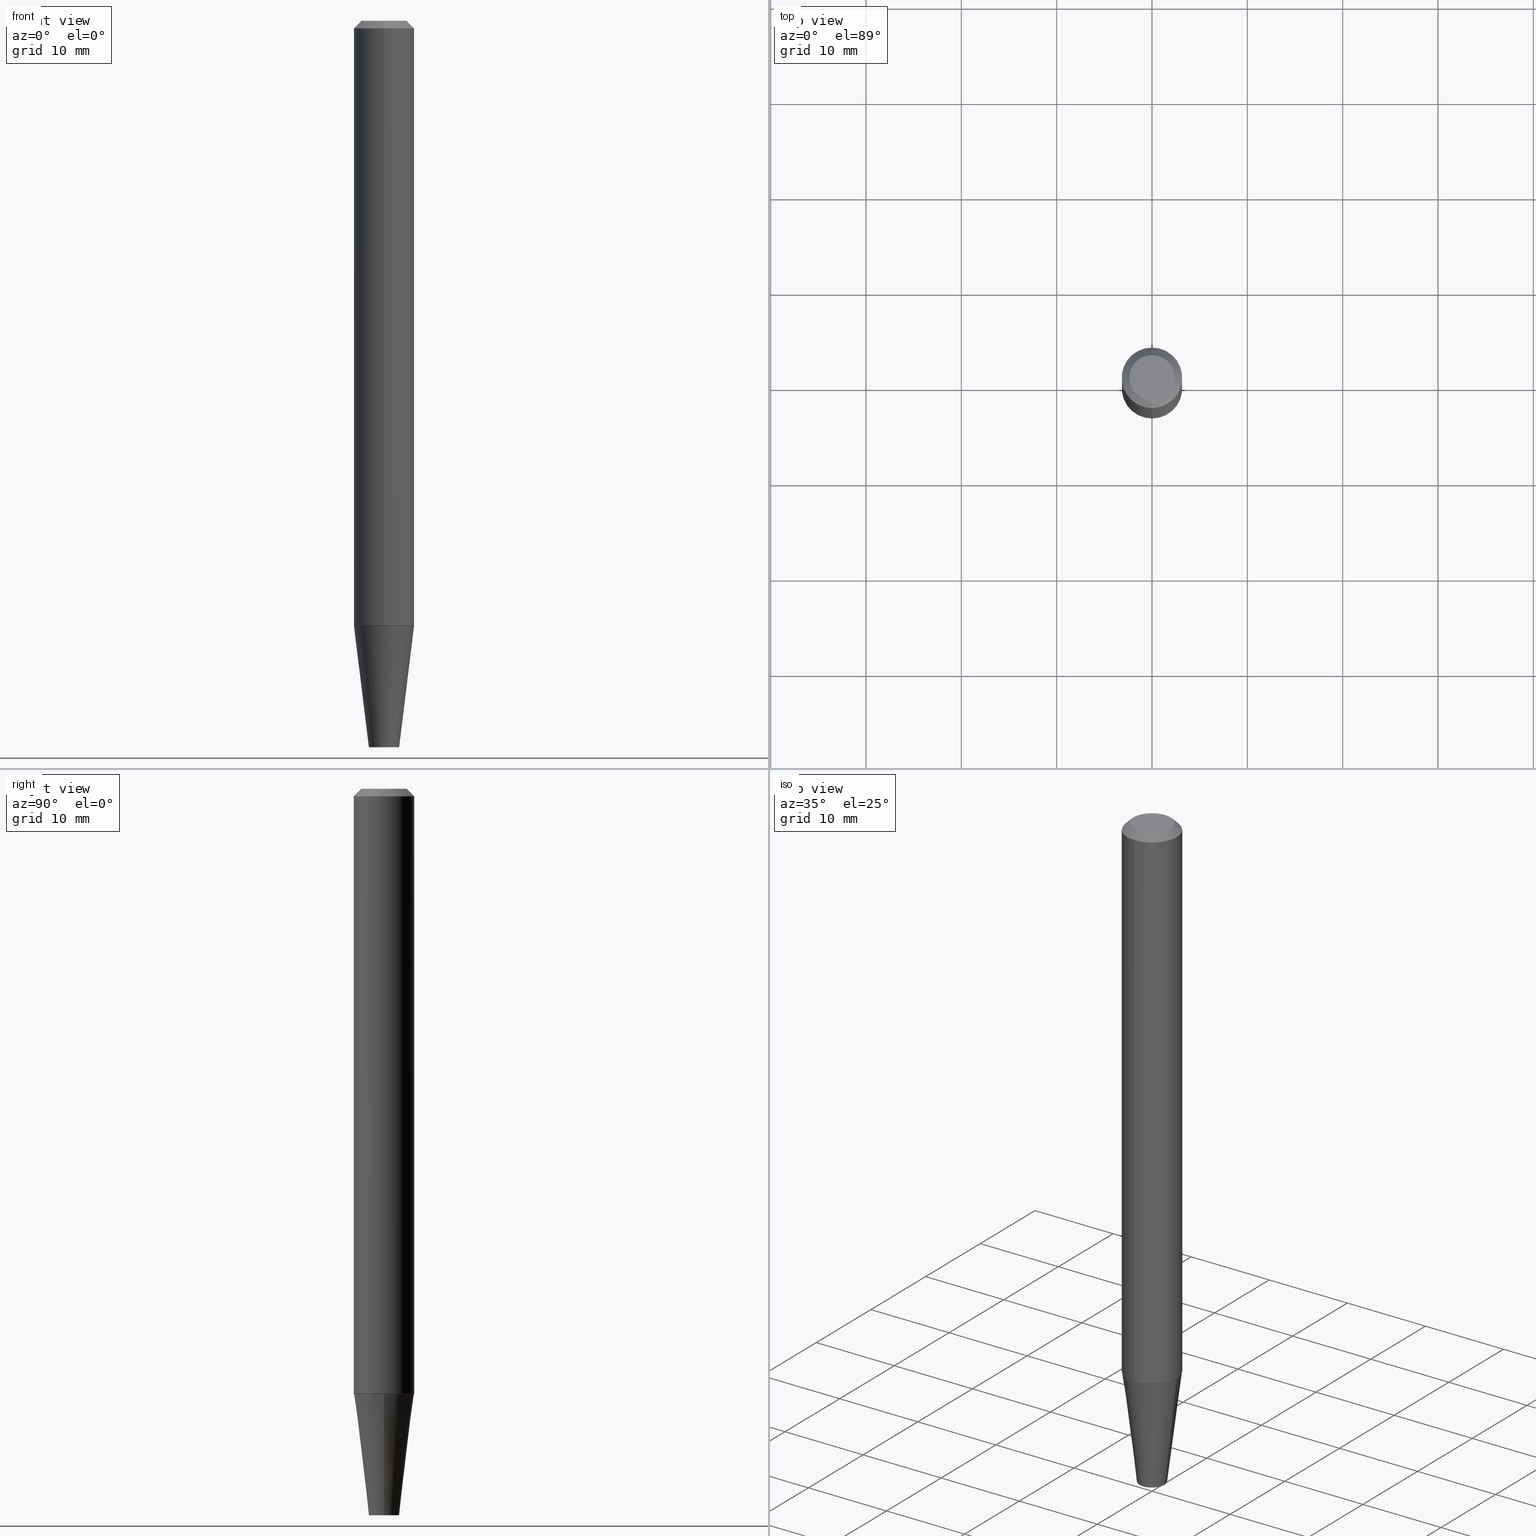
[diagram: canonical four-view strip — front | top / right | iso, engineering-drawing reading convention]
A machine part, canonical four-view strip (front | top / right | iso — engineering-drawing reading convention). The complete STEP part file that produces these views, byte-faithful:
ISO-10303-21;
HEADER;
FILE_DESCRIPTION (( 'STEP AP203' ),
    '1' );
FILE_NAME ('32312.STEP',
    '2024-03-04T15:07:06',
    ( '' ),
    ( '' ),
    'SwSTEP 2.0',
    'SolidWorks 2023',
    '' );
FILE_SCHEMA (( 'CONFIG_CONTROL_DESIGN' ));
ENDSEC;

DATA;
#1 = EDGE_CURVE ( 'NONE', #155, #297, #37, .T. ) ;
#2 = CARTESIAN_POINT ( 'NONE',  ( 6.245270137589869885E-29, -8.540247346122001173E-15, -2.500000000000000000 ) ) ;
#3 = FACE_OUTER_BOUND ( 'NONE', #154, .T. ) ;
#4 = ORIENTED_EDGE ( 'NONE', *, *, #391, .F. ) ;
#5 = LOCAL_TIME ( 10, 7, 6.000000000000000000, #26 ) ;
#6 = VECTOR ( 'NONE', #274, 39.37007874015748143 ) ;
#7 = ORIENTED_EDGE ( 'NONE', *, *, #116, .F. ) ;
#8 = ORIENTED_EDGE ( 'NONE', *, *, #1, .T. ) ;
#9 = DIRECTION ( 'NONE',  ( -2.634027352174644094E-29, 3.221454768900221643E-15, 1.000000000000000000 ) ) ;
#10 = EDGE_CURVE ( 'NONE', #288, #130, #156, .T. ) ;
#11 = CYLINDRICAL_SURFACE ( 'NONE', #125, 0.1250000000000001388 ) ;
#12 = DIRECTION ( 'NONE',  ( -1.000000000000000000, 6.982962677686265922E-15, -4.876176775795935793E-29 ) ) ;
#13 = CC_DESIGN_APPROVAL ( #386, ( #56 ) ) ;
#14 = VERTEX_POINT ( 'NONE', #317 ) ;
#15 = CARTESIAN_POINT ( 'NONE',  ( 4.364351673554662661E-16, 0.06249999999998970962, -3.000000000000000444 ) ) ;
#16 = ADVANCED_FACE ( 'NONE', ( #126 ), #278, .T. ) ;
#17 = APPROVAL_ROLE ( '' ) ;
#18 = ORIENTED_EDGE ( 'NONE', *, *, #213, .T. ) ;
#19 = CARTESIAN_POINT ( 'NONE',  ( 6.239012973379943881E-29, -8.532594740894794677E-15, -2.497624487762148515 ) ) ;
#20 = ORIENTED_EDGE ( 'NONE', *, *, #302, .F. ) ;
#21 = DIRECTION ( 'NONE',  ( -2.634027352174644094E-29, 3.221454768900221643E-15, 1.000000000000000000 ) ) ;
#22 = FACE_OUTER_BOUND ( 'NONE', #221, .T. ) ;
#23 = EDGE_LOOP ( 'NONE', ( #283, #4 ) ) ;
#24 = AXIS2_PLACEMENT_3D ( 'NONE', #185, #357, #324 ) ;
#25 = CARTESIAN_POINT ( 'NONE',  ( -3.397982428467408395E-30, -4.866104238714468673E-16, 1.310162147875615221E-17 ) ) ;
#26 = COORDINATED_UNIVERSAL_TIME_OFFSET ( 5, 0, .BEHIND. ) ;
#27 = CYLINDRICAL_SURFACE ( 'NONE', #100, 0.1250000000000001388 ) ;
#28 = ORIENTED_EDGE ( 'NONE', *, *, #350, .F. ) ;
#29 = CC_DESIGN_PERSON_AND_ORGANIZATION_ASSIGNMENT ( #90, #174, ( #305 ) ) ;
#30 = APPLICATION_PROTOCOL_DEFINITION ( 'international standard', 'config_control_design', 1994, #151 ) ;
#31 = PLANE ( 'NONE',  #95 ) ;
#32 = LINE ( 'NONE', #121, #196 ) ;
#33 = FACE_OUTER_BOUND ( 'NONE', #39, .T. ) ;
#34 = CIRCLE ( 'NONE', #204, 0.09375000000000049960 ) ;
#35 = CARTESIAN_POINT ( 'NONE',  ( 0.000000000000000000, 0.000000000000000000, 0.000000000000000000 ) ) ;
#36 = VECTOR ( 'NONE', #409, 39.37007874015748143 ) ;
#37 = LINE ( 'NONE', #353, #330 ) ;
#38 = DIRECTION ( 'NONE',  ( -2.634027352174644094E-29, 3.221454768900221643E-15, 1.000000000000000000 ) ) ;
#39 = EDGE_LOOP ( 'NONE', ( #127, #249, #67, #253 ) ) ;
#40 = ADVANCED_FACE ( 'NONE', ( #3 ), #388, .F. ) ;
#41 = CONICAL_SURFACE ( 'NONE', #102, 0.1233922804514486354, 0.7853981633975030130 ) ;
#42 = CIRCLE ( 'NONE', #321, 0.1233922804514486216 ) ;
#43 = DIRECTION ( 'NONE',  ( 2.438088387897960049E-29, -3.491481338843145188E-15, -1.000000000000000000 ) ) ;
#44 = ADVANCED_FACE ( 'NONE', ( #255 ), #153, .T. ) ;
#45 = ORIENTED_EDGE ( 'NONE', *, *, #349, .F. ) ;
#46 = FACE_OUTER_BOUND ( 'NONE', #372, .T. ) ;
#47 = CARTESIAN_POINT ( 'NONE',  ( 8.767548852365608530E-16, 0.1233922804514401006, -2.500000000000000444 ) ) ;
#48 = DIRECTION ( 'NONE',  ( 2.634027352174644094E-29, -3.221454768900221643E-15, -1.000000000000000000 ) ) ;
#49 = EDGE_LOOP ( 'NONE', ( #165, #268 ) ) ;
#50 = CARTESIAN_POINT ( 'NONE',  ( -8.575622497214472631E-16, -0.1250000000000010825, -0.03124999999999965306 ) ) ;
#51 = CARTESIAN_POINT ( 'NONE',  ( -7.503669685062676741E-16, -0.09375000000000098532, 3.151130060631535691E-16 ) ) ;
#52 = ORIENTED_EDGE ( 'NONE', *, *, #279, .T. ) ;
#53 = DIRECTION ( 'NONE',  ( 1.000000000000000000, -6.982962677686273810E-15, 0.000000000000000000 ) ) ;
#54 = DIRECTION ( 'NONE',  ( 1.000000000000000000, -6.982962677686273810E-15, 0.000000000000000000 ) ) ;
#55 = VERTEX_POINT ( 'NONE', #270 ) ;
#56 = PRODUCT_DEFINITION ( 'UNKNOWN', '', #305, #414 ) ;
#57 = AXIS2_PLACEMENT_3D ( 'NONE', #19, #171, #331 ) ;
#58 = PERSON_AND_ORGANIZATION ( #277, #365 ) ;
#59 = PERSON_AND_ORGANIZATION_ROLE ( 'creator' ) ;
#60 = CARTESIAN_POINT ( 'NONE',  ( 8.728703347107841277E-16, 0.1249999999999999167, -0.03125000000000045797 ) ) ;
#61 = DIRECTION ( 'NONE',  ( -6.982962677686265922E-15, -1.000000000000000000, 4.427907456883688085E-15 ) ) ;
#62 = APPROVAL_STATUS ( 'not_yet_approved' ) ;
#63 = LOCAL_TIME ( 10, 7, 6.000000000000000000, #328 ) ;
#64 = AXIS2_PLACEMENT_3D ( 'NONE', #168, #360, #142 ) ;
#65 = PERSON_AND_ORGANIZATION_ROLE ( 'classification_officer' ) ;
#66 = APPROVAL_PERSON_ORGANIZATION ( #310, #203, #131 ) ;
#67 = ORIENTED_EDGE ( 'NONE', *, *, #323, .F. ) ;
#68 = MANIFOLD_SOLID_BREP ( 'Body-Move/Copy2[2]', #183 ) ;
#69 = EDGE_LOOP ( 'NONE', ( #406, #170, #389, #407 ) ) ;
#70 = EDGE_LOOP ( 'NONE', ( #200, #236, #300, #287 ) ) ;
#71 = ORIENTED_EDGE ( 'NONE', *, *, #220, .F. ) ;
#72 = APPROVAL_PERSON_ORGANIZATION ( #271, #386, #89 ) ;
#73 = AXIS2_PLACEMENT_3D ( 'NONE', #108, #192, #104 ) ;
#74 = VERTEX_POINT ( 'NONE', #326 ) ;
#75 = CARTESIAN_POINT ( 'NONE',  ( 6.113672015462842613E-29, -8.728703347107864943E-15, -2.500000000000000000 ) ) ;
#76 = LINE ( 'NONE', #191, #179 ) ;
#77 = DATE_AND_TIME ( #405, #294 ) ;
#78 = CARTESIAN_POINT ( 'NONE',  ( 7.336406418555409790E-29, -1.047444401652943635E-14, -3.000000000000000444 ) ) ;
#79 = SHAPE_DEFINITION_REPRESENTATION ( #177, #299 ) ;
#80 = DIRECTION ( 'NONE',  ( 2.438088387897960049E-29, -3.491481338843145188E-15, -1.000000000000000000 ) ) ;
#81 = ORIENTED_EDGE ( 'NONE', *, *, #275, .T. ) ;
#82 = CARTESIAN_POINT ( 'NONE',  ( 6.546527510330876027E-16, 0.09375000000000002776, -2.858986465786003734E-16 ) ) ;
#83 = DIRECTION ( 'NONE',  ( -2.634027352174644094E-29, 3.221454768900221643E-15, 1.000000000000000000 ) ) ;
#84 = ORIENTED_EDGE ( 'NONE', *, *, #275, .F. ) ;
#85 = DIRECTION ( 'NONE',  ( -2.445468806185136597E-29, 3.491481338843145583E-15, 1.000000000000000000 ) ) ;
#86 = CALENDAR_DATE ( 2024, 4, 3 ) ;
#87 = CIRCLE ( 'NONE', #182, 0.06250000000000018041 ) ;
#88 = AXIS2_PLACEMENT_3D ( 'NONE', #75, #136, #402 ) ;
#89 = APPROVAL_ROLE ( '' ) ;
#90 = PERSON_AND_ORGANIZATION ( #277, #365 ) ;
#91 = ADVANCED_FACE ( 'NONE', ( #301 ), #113, .T. ) ;
#92 = CARTESIAN_POINT ( 'NONE',  ( 8.728703347107841277E-16, 0.1249999999999999167, -0.03125000000000045797 ) ) ;
#93 = DIRECTION ( 'NONE',  ( 1.000000000000000000, 0.000000000000000000, 0.000000000000000000 ) ) ;
#94 = DIRECTION ( 'NONE',  ( 0.000000000000000000, 0.000000000000000000, 1.000000000000000000 ) ) ;
#95 = AXIS2_PLACEMENT_3D ( 'NONE', #393, #43, #12 ) ;
#96 = LINE ( 'NONE', #242, #387 ) ;
#97 = ADVANCED_FACE ( 'NONE', ( #234 ), #41, .T. ) ;
#98 = ORIENTED_EDGE ( 'NONE', *, *, #123, .F. ) ;
#99 = ORIENTED_EDGE ( 'NONE', *, *, #349, .T. ) ;
#100 = AXIS2_PLACEMENT_3D ( 'NONE', #335, #83, #114 ) ;
#101 = LINE ( 'NONE', #47, #212 ) ;
#102 = AXIS2_PLACEMENT_3D ( 'NONE', #199, #261, #334 ) ;
#103 = ORIENTED_EDGE ( 'NONE', *, *, #359, .F. ) ;
#104 = DIRECTION ( 'NONE',  ( 6.982962677686265133E-15, 1.000000000000000000, -3.209921392555496413E-15 ) ) ;
#105 = CARTESIAN_POINT ( 'NONE',  ( 6.113672015462842613E-29, -8.728703347107864943E-15, -2.500000000000000000 ) ) ;
#106 = FACE_OUTER_BOUND ( 'NONE', #336, .T. ) ;
#107 = VERTEX_POINT ( 'NONE', #162 ) ;
#108 = CARTESIAN_POINT ( 'NONE',  ( -2.574848880912829663E-30, -5.872808853995789416E-16, -0.03125000000000005551 ) ) ;
#109 =( LENGTH_UNIT ( ) NAMED_UNIT ( * ) SI_UNIT ( $, .METRE. ) );
#110 = CIRCLE ( 'NONE', #404, 0.1249999999999997918 ) ;
#111 = ADVANCED_FACE ( 'NONE', ( #144 ), #163, .T. ) ;
#112 = VERTEX_POINT ( 'NONE', #115 ) ;
#113 = PLANE ( 'NONE',  #211 ) ;
#114 = DIRECTION ( 'NONE',  ( -6.982962677686266711E-15, -1.000000000000000000, 3.221454768900222038E-15 ) ) ;
#115 = CARTESIAN_POINT ( 'NONE',  ( 7.637615428719357173E-16, 0.09375000000000002776, -2.889097631056411938E-16 ) ) ;
#116 = EDGE_CURVE ( 'NONE', #55, #322, #139, .T. ) ;
#117 = APPROVAL_DATE_TIME ( #206, #386 ) ;
#118 = FACE_OUTER_BOUND ( 'NONE', #337, .T. ) ;
#119 = CC_DESIGN_APPROVAL ( #203, ( #339 ) ) ;
#120 = CLOSED_SHELL ( 'NONE', ( #215, #91, #189, #319 ) ) ;
#121 = CARTESIAN_POINT ( 'NONE',  ( -8.616436891069999506E-16, -0.1233922804514571703, -2.499999999999999556 ) ) ;
#122 = CC_DESIGN_PERSON_AND_ORGANIZATION_ASSIGNMENT ( #132, #65, ( #339 ) ) ;
#123 = EDGE_CURVE ( 'NONE', #390, #112, #233, .T. ) ;
#124 = CC_DESIGN_PERSON_AND_ORGANIZATION_ASSIGNMENT ( #58, #238, ( #209 ) ) ;
#125 = AXIS2_PLACEMENT_3D ( 'NONE', #227, #197, #362 ) ;
#126 = FACE_OUTER_BOUND ( 'NONE', #318, .T. ) ;
#127 = ORIENTED_EDGE ( 'NONE', *, *, #128, .T. ) ;
#128 = EDGE_CURVE ( 'NONE', #155, #74, #378, .T. ) ;
#129 = APPROVAL_DATE_TIME ( #281, #149 ) ;
#130 = VERTEX_POINT ( 'NONE', #50 ) ;
#131 = APPROVAL_ROLE ( '' ) ;
#132 = PERSON_AND_ORGANIZATION ( #277, #365 ) ;
#133 = DIRECTION ( 'NONE',  ( -6.982962677686265922E-15, -1.000000000000000000, 3.221454768900221643E-15 ) ) ;
#134 = ORIENTED_EDGE ( 'NONE', *, *, #10, .F. ) ;
#135 = EDGE_CURVE ( 'NONE', #74, #155, #247, .T. ) ;
#136 = DIRECTION ( 'NONE',  ( -2.445468806185136597E-29, 3.491481338843145583E-15, 1.000000000000000000 ) ) ;
#137 = LOCAL_TIME ( 10, 7, 6.000000000000000000, #410 ) ;
#138 = CARTESIAN_POINT ( 'NONE',  ( 8.834117423811068024E-16, 0.1243291498063037182, -2.499063130645136965 ) ) ;
#139 = CIRCLE ( 'NONE', #88, 0.1238922804514488302 ) ;
#140 = DIRECTION ( 'NONE',  ( -6.982962677686266711E-15, -1.000000000000000000, 4.394541421573472565E-15 ) ) ;
#141 = ORIENTED_EDGE ( 'NONE', *, *, #323, .T. ) ;
#142 = DIRECTION ( 'NONE',  ( -6.982962677686266711E-15, -1.000000000000000000, 4.394541421573472565E-15 ) ) ;
#143 = EDGE_CURVE ( 'NONE', #297, #130, #237, .T. ) ;
#144 = FACE_OUTER_BOUND ( 'NONE', #69, .T. ) ;
#145 = CONICAL_SURFACE ( 'NONE', #347, 0.1243291498063122530, 0.4363323129985816062 ) ;
#146 = FACE_OUTER_BOUND ( 'NONE', #263, .T. ) ;
#147 = DIRECTION ( 'NONE',  ( -2.634027352174644094E-29, 3.221454768900221643E-15, 1.000000000000000000 ) ) ;
#148 = LINE ( 'NONE', #207, #252 ) ;
#149 = APPROVAL ( #296, 'UNSPECIFIED' ) ;
#150 = CARTESIAN_POINT ( 'NONE',  ( 6.242802398083744501E-29, -8.537229263870939890E-15, -2.499063130645136521 ) ) ;
#151 = APPLICATION_CONTEXT ( 'configuration controlled 3d designs of mechanical parts and assemblies' ) ;
#152 = AXIS2_PLACEMENT_3D ( 'NONE', #329, #195, #53 ) ;
#153 = CONICAL_SURFACE ( 'NONE', #346, 0.1250000000000004996, 0.7853981633974471688 ) ;
#154 = EDGE_LOOP ( 'NONE', ( #158, #45 ) ) ;
#155 = VERTEX_POINT ( 'NONE', #369 ) ;
#156 = CIRCLE ( 'NONE', #24, 0.1250000000000004996 ) ;
#157 = AXIS2_PLACEMENT_3D ( 'NONE', #175, #309, #311 ) ;
#158 = ORIENTED_EDGE ( 'NONE', *, *, #316, .F. ) ;
#159 = DIRECTION ( 'NONE',  ( 1.000000000000000000, -6.982962677686273810E-15, 0.000000000000000000 ) ) ;
#160 = CARTESIAN_POINT ( 'NONE',  ( -0.06250000000000018041, -8.939375277435968342E-15, -3.000000000000000444 ) ) ;
#161 = ORIENTED_EDGE ( 'NONE', *, *, #355, .F. ) ;
#162 = CARTESIAN_POINT ( 'NONE',  ( -8.616436891069998520E-16, -0.1233922804514571564, -2.499999999999999556 ) ) ;
#163 = CONICAL_SURFACE ( 'NONE', #73, 0.1250000000000004996, 0.7853981633974471688 ) ;
#164 = DATE_TIME_ROLE ( 'creation_date' ) ;
#165 = ORIENTED_EDGE ( 'NONE', *, *, #116, .T. ) ;
#166 = ORIENTED_EDGE ( 'NONE', *, *, #415, .T. ) ;
#167 = DIRECTION ( 'NONE',  ( -1.000000000000000000, 6.982962677686265922E-15, -4.876176775795935793E-29 ) ) ;
#168 = CARTESIAN_POINT ( 'NONE',  ( 6.242802398083744501E-29, -8.537229263870939890E-15, -2.499063130645136521 ) ) ;
#169 = CARTESIAN_POINT ( 'NONE',  ( -2.574848880912829663E-30, -5.872808853995789416E-16, -0.03125000000000005551 ) ) ;
#170 = ORIENTED_EDGE ( 'NONE', *, *, #239, .F. ) ;
#171 = DIRECTION ( 'NONE',  ( -2.634027352174644094E-29, 3.221454768900221643E-15, 1.000000000000000000 ) ) ;
#172 = AXIS2_PLACEMENT_3D ( 'NONE', #78, #85, #159 ) ;
#173 = ADVANCED_FACE ( 'NONE', ( #46 ), #265, .F. ) ;
#174 = PERSON_AND_ORGANIZATION_ROLE ( 'design_supplier' ) ;
#175 = CARTESIAN_POINT ( 'NONE',  ( 6.242802398083744501E-29, -8.537229263870939890E-15, -2.499063130645136521 ) ) ;
#176 = DATE_TIME_ROLE ( 'classification_date' ) ;
#177 = PRODUCT_DEFINITION_SHAPE ( 'NONE', 'NONE',  #56 ) ;
#178 = FACE_OUTER_BOUND ( 'NONE', #49, .T. ) ;
#179 = VECTOR ( 'NONE', #325, 39.37007874015748854 ) ;
#180 = AXIS2_PLACEMENT_3D ( 'NONE', #264, #259, #398 ) ;
#181 =( NAMED_UNIT ( * ) SI_UNIT ( $, .STERADIAN. ) SOLID_ANGLE_UNIT ( ) );
#182 = AXIS2_PLACEMENT_3D ( 'NONE', #332, #370, #54 ) ;
#183 = CLOSED_SHELL ( 'NONE', ( #312, #364, #44, #97, #16, #40, #173, #111, #194, #308 ) ) ;
#184 = CC_DESIGN_DATE_AND_TIME_ASSIGNMENT ( #375, #176, ( #339 ) ) ;
#185 = CARTESIAN_POINT ( 'NONE',  ( -2.574848880912829663E-30, -5.872808853995789416E-16, -0.03125000000000005551 ) ) ;
#186 = CARTESIAN_POINT ( 'NONE',  ( 6.030273395257036934E-29, -8.848134917997253710E-15, -2.500000000000000000 ) ) ;
#187 = ORIENTED_EDGE ( 'NONE', *, *, #143, .F. ) ;
#188 = ORIENTED_EDGE ( 'NONE', *, *, #391, .T. ) ;
#189 = ADVANCED_FACE ( 'NONE', ( #106 ), #368, .T. ) ;
#190 = EDGE_LOOP ( 'NONE', ( #98, #254, #166, #20 ) ) ;
#191 = CARTESIAN_POINT ( 'NONE',  ( 0.06250000000000018041, -1.091087918388483118E-14, -3.000000000000000444 ) ) ;
#192 = DIRECTION ( 'NONE',  ( 2.634027352174644094E-29, -3.221454768900221643E-15, -1.000000000000000000 ) ) ;
#193 = PERSON_AND_ORGANIZATION ( #277, #365 ) ;
#194 = ADVANCED_FACE ( 'NONE', ( #366 ), #11, .T. ) ;
#195 = DIRECTION ( 'NONE',  ( -2.445468806185136597E-29, 3.491481338843145583E-15, 1.000000000000000000 ) ) ;
#196 = VECTOR ( 'NONE', #240, 39.37007874015748143 ) ;
#197 = DIRECTION ( 'NONE',  ( -2.634027352174644094E-29, 3.221454768900221643E-15, 1.000000000000000000 ) ) ;
#198 = ORIENTED_EDGE ( 'NONE', *, *, #350, .T. ) ;
#199 = CARTESIAN_POINT ( 'NONE',  ( 6.245270137589869885E-29, -8.540247346122001173E-15, -2.500000000000000000 ) ) ;
#200 = ORIENTED_EDGE ( 'NONE', *, *, #316, .T. ) ;
#201 = CARTESIAN_POINT ( 'NONE',  ( 6.242802398083744501E-29, -8.537229263870939890E-15, -2.499063130645136521 ) ) ;
#202 = DATE_AND_TIME ( #86, #5 ) ;
#203 = APPROVAL ( #62, 'UNSPECIFIED' ) ;
#204 = AXIS2_PLACEMENT_3D ( 'NONE', #25, #408, #382 ) ;
#205 = COORDINATED_UNIVERSAL_TIME_OFFSET ( 5, 0, .BEHIND. ) ;
#206 = DATE_AND_TIME ( #374, #137 ) ;
#207 = CARTESIAN_POINT ( 'NONE',  ( -0.06250000000000018041, -1.003035480667937216E-14, -3.000000000000000444 ) ) ;
#208 = CARTESIAN_POINT ( 'NONE',  ( 6.245270137589869885E-29, -8.540247346122001173E-15, -2.500000000000000000 ) ) ;
#209 = PRODUCT ( '32312', '32312', '', ( #381 ) ) ;
#210 =( NAMED_UNIT ( * ) PLANE_ANGLE_UNIT ( ) SI_UNIT ( $, .RADIAN. ) );
#211 = AXIS2_PLACEMENT_3D ( 'NONE', #15, #80, #167 ) ;
#212 = VECTOR ( 'NONE', #361, 39.37007874015748143 ) ;
#213 = EDGE_CURVE ( 'NONE', #223, #354, #356, .T. ) ;
#214 = CARTESIAN_POINT ( 'NONE',  ( 8.881784197001227671E-16, 0.1249999999999996808, -3.835579915796902468E-16 ) ) ;
#215 = ADVANCED_FACE ( 'NONE', ( #146 ), #394, .T. ) ;
#216 = CIRCLE ( 'NONE', #57, 0.1249999999999997918 ) ;
#217 = ORIENTED_EDGE ( 'NONE', *, *, #123, .T. ) ;
#218 = PERSON_AND_ORGANIZATION_ROLE ( 'creator' ) ;
#219 = ORIENTED_EDGE ( 'NONE', *, *, #143, .T. ) ;
#220 = EDGE_CURVE ( 'NONE', #291, #297, #216, .T. ) ;
#221 = EDGE_LOOP ( 'NONE', ( #141, #81, #303, #187 ) ) ;
#222 = SECURITY_CLASSIFICATION_LEVEL ( 'unclassified' ) ;
#223 = VERTEX_POINT ( 'NONE', #304 ) ;
#224 = CARTESIAN_POINT ( 'NONE',  ( 6.245270137589869885E-29, -8.540247346122001173E-15, -2.500000000000000000 ) ) ;
#225 = DIRECTION ( 'NONE',  ( -2.634027352174644094E-29, 3.221454768900221643E-15, 1.000000000000000000 ) ) ;
#226 = DIRECTION ( 'NONE',  ( -2.634027352174644094E-29, 3.221454768900221643E-15, 1.000000000000000000 ) ) ;
#227 = CARTESIAN_POINT ( 'NONE',  ( -3.397982428467408395E-30, -4.866104238714468673E-16, 1.912385453283800096E-17 ) ) ;
#228 = APPLICATION_CONTEXT ( 'configuration controlled 3d designs of mechanical parts and assemblies' ) ;
#229 = ORIENTED_EDGE ( 'NONE', *, *, #284, .F. ) ;
#230 = CARTESIAN_POINT ( 'NONE',  ( -8.728703347107876776E-16, -0.1250000000000006384, 4.218057006453661994E-16 ) ) ;
#231 = AXIS2_PLACEMENT_3D ( 'NONE', #35, #94, #93 ) ;
#232 = AXIS2_PLACEMENT_3D ( 'NONE', #186, #38, #133 ) ;
#233 = CIRCLE ( 'NONE', #413, 0.09375000000000049960 ) ;
#234 = FACE_OUTER_BOUND ( 'NONE', #70, .T. ) ;
#235 = DIRECTION ( 'NONE',  ( 1.000000000000000000, -6.982962677686261977E-15, 0.000000000000000000 ) ) ;
#236 = ORIENTED_EDGE ( 'NONE', *, *, #333, .T. ) ;
#237 = LINE ( 'NONE', #230, #341 ) ;
#238 = PERSON_AND_ORGANIZATION_ROLE ( 'design_owner' ) ;
#239 = EDGE_CURVE ( 'NONE', #112, #390, #34, .T. ) ;
#240 = DIRECTION ( 'NONE',  ( -4.937700262164819410E-15, -0.7071067811865838770, 0.7071067811865111574 ) ) ;
#241 = CC_DESIGN_APPROVAL ( #149, ( #305 ) ) ;
#242 = CARTESIAN_POINT ( 'NONE',  ( -8.575622497214472631E-16, -0.1250000000000010825, -0.03124999999999965306 ) ) ;
#243 = LINE ( 'NONE', #92, #6 ) ;
#244 = EDGE_CURVE ( 'NONE', #390, #130, #96, .T. ) ;
#245 = CC_DESIGN_DATE_AND_TIME_ASSIGNMENT ( #202, #164, ( #56 ) ) ;
#246 = VECTOR ( 'NONE', #396, 39.37007874015748143 ) ;
#247 = CIRCLE ( 'NONE', #64, 0.1243291498063122391 ) ;
#248 = CC_DESIGN_PERSON_AND_ORGANIZATION_ASSIGNMENT ( #280, #218, ( #305 ) ) ;
#249 = ORIENTED_EDGE ( 'NONE', *, *, #355, .T. ) ;
#250 = COORDINATED_UNIVERSAL_TIME_OFFSET ( 5, 0, .BEHIND. ) ;
#251 = DIMENSIONAL_EXPONENTS ( 1.000000000000000000, 0.000000000000000000, 0.000000000000000000, 0.000000000000000000, 0.000000000000000000, 0.000000000000000000, 0.000000000000000000 ) ;
#252 = VECTOR ( 'NONE', #343, 39.37007874015748854 ) ;
#253 = ORIENTED_EDGE ( 'NONE', *, *, #1, .F. ) ;
#254 = ORIENTED_EDGE ( 'NONE', *, *, #244, .T. ) ;
#255 = FACE_OUTER_BOUND ( 'NONE', #190, .T. ) ;
#256 = ORIENTED_EDGE ( 'NONE', *, *, #135, .F. ) ;
#257 = ORIENTED_EDGE ( 'NONE', *, *, #135, .T. ) ;
#258 =( GEOMETRIC_REPRESENTATION_CONTEXT ( 3 ) GLOBAL_UNCERTAINTY_ASSIGNED_CONTEXT ( ( #314 ) ) GLOBAL_UNIT_ASSIGNED_CONTEXT ( ( #348, #210, #181 ) ) REPRESENTATION_CONTEXT ( 'NONE', 'WORKASPACE' ) );
#259 = DIRECTION ( 'NONE',  ( -2.445468806185136597E-29, 3.491481338843145583E-15, 1.000000000000000000 ) ) ;
#260 = DIRECTION ( 'NONE',  ( -6.982962677686265922E-15, -1.000000000000000000, 4.427907456883688085E-15 ) ) ;
#261 = DIRECTION ( 'NONE',  ( -2.634027352174644094E-29, 3.221454768900221643E-15, 1.000000000000000000 ) ) ;
#262 = ORIENTED_EDGE ( 'NONE', *, *, #220, .T. ) ;
#263 = EDGE_LOOP ( 'NONE', ( #18, #315, #7, #28 ) ) ;
#264 = CARTESIAN_POINT ( 'NONE',  ( 7.336406418555409790E-29, -1.047444401652943635E-14, -3.000000000000000444 ) ) ;
#265 = PLANE ( 'NONE',  #266 ) ;
#266 = AXIS2_PLACEMENT_3D ( 'NONE', #82, #373, #338 ) ;
#267 = AXIS2_PLACEMENT_3D ( 'NONE', #224, #9, #260 ) ;
#268 = ORIENTED_EDGE ( 'NONE', *, *, #359, .T. ) ;
#269 = PRODUCT_RELATED_PRODUCT_CATEGORY ( 'detail', '', ( #209 ) ) ;
#270 = CARTESIAN_POINT ( 'NONE',  ( 0.1238922804514488302, -9.593838517553770713E-15, -2.500000000000000000 ) ) ;
#271 = PERSON_AND_ORGANIZATION ( #277, #365 ) ;
#272 = CARTESIAN_POINT ( 'NONE',  ( 8.881784197001548146E-16, 0.1249999999999912570, -2.497624487762148959 ) ) ;
#273 = APPROVAL_DATE_TIME ( #77, #203 ) ;
#274 = DIRECTION ( 'NONE',  ( 4.937700262164543309E-15, 0.7071067811865443531, -0.7071067811865506814 ) ) ;
#275 = EDGE_CURVE ( 'NONE', #291, #288, #276, .T. ) ;
#276 = LINE ( 'NONE', #214, #36 ) ;
#277 = PERSON ( 'UNSPECIFIED', 'UNSPECIFIED', 'UNSPECIFIED', ('UNSPECIFIED'), ('UNSPECIFIED'), ('UNSPECIFIED') ) ;
#278 = CONICAL_SURFACE ( 'NONE', #320, 0.1233922804514486354, 0.7853981633975030130 ) ;
#279 = EDGE_CURVE ( 'NONE', #107, #155, #32, .T. ) ;
#280 = PERSON_AND_ORGANIZATION ( #277, #365 ) ;
#281 = DATE_AND_TIME ( #352, #63 ) ;
#282 = DIRECTION ( 'NONE',  ( -6.982962677686265922E-15, -1.000000000000000000, 4.427907456883687296E-15 ) ) ;
#283 = ORIENTED_EDGE ( 'NONE', *, *, #213, .F. ) ;
#284 = EDGE_CURVE ( 'NONE', #354, #322, #148, .T. ) ;
#285 = AXIS2_PLACEMENT_3D ( 'NONE', #169, #147, #367 ) ;
#286 = CONICAL_SURFACE ( 'NONE', #157, 0.1243291498063122530, 0.4363323129985816062 ) ;
#287 = ORIENTED_EDGE ( 'NONE', *, *, #279, .F. ) ;
#288 = VERTEX_POINT ( 'NONE', #60 ) ;
#289 = DIRECTION ( 'NONE',  ( -2.951127548643968950E-15, -0.4226182617406957776, 0.9063077870366516020 ) ) ;
#290 = CARTESIAN_POINT ( 'NONE',  ( -0.1238922804514488302, -7.848395748192562947E-15, -2.500000000000000000 ) ) ;
#291 = VERTEX_POINT ( 'NONE', #272 ) ;
#292 = CARTESIAN_POINT ( 'NONE',  ( -2.574848880912829663E-30, -5.872808853995789416E-16, -0.03125000000000005551 ) ) ;
#293 = LINE ( 'NONE', #138, #246 ) ;
#294 = LOCAL_TIME ( 10, 7, 6.000000000000000000, #250 ) ;
#295 = CARTESIAN_POINT ( 'NONE',  ( -3.397982428467408395E-30, -4.866104238714468673E-16, 1.310162147875615221E-17 ) ) ;
#296 = APPROVAL_STATUS ( 'not_yet_approved' ) ;
#297 = VERTEX_POINT ( 'NONE', #411 ) ;
#298 = DIRECTION ( 'NONE',  ( -6.982962677686265922E-15, -1.000000000000000000, 3.221454768900221643E-15 ) ) ;
#299 = ADVANCED_BREP_SHAPE_REPRESENTATION ( '32312', ( #344, #68, #231 ), #258 ) ;
#300 = ORIENTED_EDGE ( 'NONE', *, *, #128, .F. ) ;
#301 = FACE_OUTER_BOUND ( 'NONE', #23, .T. ) ;
#302 = EDGE_CURVE ( 'NONE', #112, #288, #243, .T. ) ;
#303 = ORIENTED_EDGE ( 'NONE', *, *, #415, .F. ) ;
#304 = CARTESIAN_POINT ( 'NONE',  ( 0.06250000000000018041, -1.091087918388483118E-14, -3.000000000000000444 ) ) ;
#305 = PRODUCT_DEFINITION_FORMATION_WITH_SPECIFIED_SOURCE ( 'ANY', '', #209, .NOT_KNOWN. ) ;
#306 = EDGE_LOOP ( 'NONE', ( #84, #262, #219, #134 ) ) ;
#307 = AXIS2_PLACEMENT_3D ( 'NONE', #201, #225, #140 ) ;
#308 = ADVANCED_FACE ( 'NONE', ( #118 ), #286, .T. ) ;
#309 = DIRECTION ( 'NONE',  ( -2.634027352174644094E-29, 3.221454768900221643E-15, 1.000000000000000000 ) ) ;
#310 = PERSON_AND_ORGANIZATION ( #277, #365 ) ;
#311 = DIRECTION ( 'NONE',  ( -6.982962677686266711E-15, -1.000000000000000000, 4.394541421573472565E-15 ) ) ;
#312 = ADVANCED_FACE ( 'NONE', ( #33 ), #145, .T. ) ;
#313 = APPROVAL_PERSON_ORGANIZATION ( #193, #149, #17 ) ;
#314 = UNCERTAINTY_MEASURE_WITH_UNIT (LENGTH_MEASURE( 1.000000000000000082E-05 ), #348, 'distance_accuracy_value', 'NONE');
#315 = ORIENTED_EDGE ( 'NONE', *, *, #284, .T. ) ;
#316 = EDGE_CURVE ( 'NONE', #107, #14, #42, .T. ) ;
#317 = CARTESIAN_POINT ( 'NONE',  ( 8.800833138088337291E-16, 0.1233922804514400867, -2.500000000000000444 ) ) ;
#318 = EDGE_LOOP ( 'NONE', ( #401, #99, #52, #256 ) ) ;
#319 = ADVANCED_FACE ( 'NONE', ( #178 ), #31, .F. ) ;
#320 = AXIS2_PLACEMENT_3D ( 'NONE', #2, #385, #282 ) ;
#321 = AXIS2_PLACEMENT_3D ( 'NONE', #208, #345, #61 ) ;
#322 = VERTEX_POINT ( 'NONE', #290 ) ;
#323 = EDGE_CURVE ( 'NONE', #297, #291, #110, .T. ) ;
#324 = DIRECTION ( 'NONE',  ( -6.982962677686266711E-15, -1.000000000000000000, 3.209921392555496413E-15 ) ) ;
#325 = DIRECTION ( 'NONE',  ( 0.1218693434051403013, 2.614447289844031754E-15, 0.9925461516413229823 ) ) ;
#326 = CARTESIAN_POINT ( 'NONE',  ( 8.834117423811078871E-16, 0.1243291498063038708, -2.499063130645136965 ) ) ;
#327 = CARTESIAN_POINT ( 'NONE',  ( 6.239012973379943881E-29, -8.532594740894794677E-15, -2.497624487762148515 ) ) ;
#328 = COORDINATED_UNIVERSAL_TIME_OFFSET ( 5, 0, .BEHIND. ) ;
#329 = CARTESIAN_POINT ( 'NONE',  ( 7.336406418555409790E-29, -1.047444401652943635E-14, -3.000000000000000444 ) ) ;
#330 = VECTOR ( 'NONE', #289, 39.37007874015748854 ) ;
#331 = DIRECTION ( 'NONE',  ( -6.982962677686265922E-15, -1.000000000000000000, 4.370956789862828249E-15 ) ) ;
#332 = CARTESIAN_POINT ( 'NONE',  ( 7.336406418555409790E-29, -1.047444401652943635E-14, -3.000000000000000444 ) ) ;
#333 = EDGE_CURVE ( 'NONE', #14, #74, #101, .T. ) ;
#334 = DIRECTION ( 'NONE',  ( -6.982962677686265922E-15, -1.000000000000000000, 4.427907456883687296E-15 ) ) ;
#335 = CARTESIAN_POINT ( 'NONE',  ( -3.397982428467408395E-30, -4.866104238714468673E-16, 1.912385453283800096E-17 ) ) ;
#336 = EDGE_LOOP ( 'NONE', ( #229, #188, #198, #103 ) ) ;
#337 = EDGE_LOOP ( 'NONE', ( #161, #257, #8, #71 ) ) ;
#338 = DIRECTION ( 'NONE',  ( 6.982962677686265922E-15, 1.000000000000000000, -3.221454768900221643E-15 ) ) ;
#339 = SECURITY_CLASSIFICATION ( '', '', #222 ) ;
#340 = ORIENTED_EDGE ( 'NONE', *, *, #239, .T. ) ;
#341 = VECTOR ( 'NONE', #21, 39.37007874015748143 ) ;
#342 = PERSON_AND_ORGANIZATION ( #277, #365 ) ;
#343 = DIRECTION ( 'NONE',  ( -0.1218693434051403013, 4.331390133080013075E-15, 0.9925461516413229823 ) ) ;
#344 = MANIFOLD_SOLID_BREP ( 'Body-Move/Copy2[1]', #120 ) ;
#345 = DIRECTION ( 'NONE',  ( -2.634027352174644094E-29, 3.221454768900221643E-15, 1.000000000000000000 ) ) ;
#346 = AXIS2_PLACEMENT_3D ( 'NONE', #292, #48, #395 ) ;
#347 = AXIS2_PLACEMENT_3D ( 'NONE', #150, #412, #380 ) ;
#348 =( CONVERSION_BASED_UNIT ( 'INCH', #403 ) LENGTH_UNIT ( ) NAMED_UNIT ( #251 ) );
#349 = EDGE_CURVE ( 'NONE', #14, #107, #384, .T. ) ;
#350 = EDGE_CURVE ( 'NONE', #223, #55, #76, .T. ) ;
#351 = CC_DESIGN_SECURITY_CLASSIFICATION ( #339, ( #305 ) ) ;
#352 = CALENDAR_DATE ( 2024, 4, 3 ) ;
#353 = CARTESIAN_POINT ( 'NONE',  ( -8.681858128458806761E-16, -0.1243291498063208017, -2.499063130645136077 ) ) ;
#354 = VERTEX_POINT ( 'NONE', #160 ) ;
#355 = EDGE_CURVE ( 'NONE', #74, #291, #293, .T. ) ;
#356 = CIRCLE ( 'NONE', #172, 0.06250000000000018041 ) ;
#357 = DIRECTION ( 'NONE',  ( -2.634027352174644094E-29, 3.221454768900221643E-15, 1.000000000000000000 ) ) ;
#358 = DIRECTION ( 'NONE',  ( -6.982962677686265922E-15, -1.000000000000000000, 4.370956789862828249E-15 ) ) ;
#359 = EDGE_CURVE ( 'NONE', #322, #55, #400, .T. ) ;
#360 = DIRECTION ( 'NONE',  ( -2.634027352174644094E-29, 3.221454768900221643E-15, 1.000000000000000000 ) ) ;
#361 = DIRECTION ( 'NONE',  ( 5.024295867788335336E-15, 0.7071067811865885400, 0.7071067811865064945 ) ) ;
#362 = DIRECTION ( 'NONE',  ( -6.982962677686266711E-15, -1.000000000000000000, 3.221454768900222038E-15 ) ) ;
#363 = CIRCLE ( 'NONE', #285, 0.1250000000000004996 ) ;
#364 = ADVANCED_FACE ( 'NONE', ( #22 ), #27, .T. ) ;
#365 = ORGANIZATION ( 'UNSPECIFIED', 'UNSPECIFIED', '' ) ;
#366 = FACE_OUTER_BOUND ( 'NONE', #306, .T. ) ;
#367 = DIRECTION ( 'NONE',  ( -6.982962677686266711E-15, -1.000000000000000000, 3.209921392555496413E-15 ) ) ;
#368 = CONICAL_SURFACE ( 'NONE', #180, 0.06250000000000018041, 0.1221730476395958415 ) ;
#369 = CARTESIAN_POINT ( 'NONE',  ( -8.681858128458795914E-16, -0.1243291498063206352, -2.499063130645136077 ) ) ;
#370 = DIRECTION ( 'NONE',  ( -2.445468806185136597E-29, 3.491481338843145583E-15, 1.000000000000000000 ) ) ;
#371 = CALENDAR_DATE ( 2024, 4, 3 ) ;
#372 = EDGE_LOOP ( 'NONE', ( #340, #217 ) ) ;
#373 = DIRECTION ( 'NONE',  ( 2.634027352174644094E-29, -3.221454768900221643E-15, -1.000000000000000000 ) ) ;
#374 = CALENDAR_DATE ( 2024, 4, 3 ) ;
#375 = DATE_AND_TIME ( #371, #383 ) ;
#376 = AXIS2_PLACEMENT_3D ( 'NONE', #105, #399, #235 ) ;
#377 = APPROVAL_STATUS ( 'not_yet_approved' ) ;
#378 = CIRCLE ( 'NONE', #307, 0.1243291498063122391 ) ;
#379 = DIRECTION ( 'NONE',  ( -4.851104656540956386E-15, -0.7071067811865490160, -0.7071067811865460184 ) ) ;
#380 = DIRECTION ( 'NONE',  ( -6.982962677686266711E-15, -1.000000000000000000, 4.394541421573472565E-15 ) ) ;
#381 = MECHANICAL_CONTEXT ( 'NONE', #228, 'mechanical' ) ;
#382 = DIRECTION ( 'NONE',  ( -6.982962677686265922E-15, -1.000000000000000000, 3.221454768900221643E-15 ) ) ;
#383 = LOCAL_TIME ( 10, 7, 6.000000000000000000, #205 ) ;
#384 = CIRCLE ( 'NONE', #267, 0.1233922804514486216 ) ;
#385 = DIRECTION ( 'NONE',  ( -2.634027352174644094E-29, 3.221454768900221643E-15, 1.000000000000000000 ) ) ;
#386 = APPROVAL ( #377, 'UNSPECIFIED' ) ;
#387 = VECTOR ( 'NONE', #379, 39.37007874015748143 ) ;
#388 = PLANE ( 'NONE',  #232 ) ;
#389 = ORIENTED_EDGE ( 'NONE', *, *, #302, .T. ) ;
#390 = VERTEX_POINT ( 'NONE', #51 ) ;
#391 = EDGE_CURVE ( 'NONE', #354, #223, #87, .T. ) ;
#392 = CC_DESIGN_PERSON_AND_ORGANIZATION_ASSIGNMENT ( #342, #59, ( #56 ) ) ;
#393 = CARTESIAN_POINT ( 'NONE',  ( 8.651351704459680908E-16, 0.1238922804514401010, -2.500000000000000444 ) ) ;
#394 = CONICAL_SURFACE ( 'NONE', #152, 0.06250000000000018041, 0.1221730476395958415 ) ;
#395 = DIRECTION ( 'NONE',  ( 6.982962677686265133E-15, 1.000000000000000000, -3.209921392555496413E-15 ) ) ;
#396 = DIRECTION ( 'NONE',  ( 3.002883358794117423E-15, 0.4226182617407016062, 0.9063077870366488265 ) ) ;
#397 = DIRECTION ( 'NONE',  ( -2.634027352174644094E-29, 3.221454768900221643E-15, 1.000000000000000000 ) ) ;
#398 = DIRECTION ( 'NONE',  ( 1.000000000000000000, -6.982962677686273810E-15, 0.000000000000000000 ) ) ;
#399 = DIRECTION ( 'NONE',  ( -2.445468806185136597E-29, 3.491481338843145583E-15, 1.000000000000000000 ) ) ;
#400 = CIRCLE ( 'NONE', #376, 0.1238922804514488302 ) ;
#401 = ORIENTED_EDGE ( 'NONE', *, *, #333, .F. ) ;
#402 = DIRECTION ( 'NONE',  ( 1.000000000000000000, -6.982962677686261977E-15, 0.000000000000000000 ) ) ;
#403 = LENGTH_MEASURE_WITH_UNIT ( LENGTH_MEASURE( 0.02539999999999999897 ), #109 );
#404 = AXIS2_PLACEMENT_3D ( 'NONE', #327, #226, #358 ) ;
#405 = CALENDAR_DATE ( 2024, 4, 3 ) ;
#406 = ORIENTED_EDGE ( 'NONE', *, *, #244, .F. ) ;
#407 = ORIENTED_EDGE ( 'NONE', *, *, #10, .T. ) ;
#408 = DIRECTION ( 'NONE',  ( -2.634027352174644094E-29, 3.221454768900221643E-15, 1.000000000000000000 ) ) ;
#409 = DIRECTION ( 'NONE',  ( -2.634027352174644094E-29, 3.221454768900221643E-15, 1.000000000000000000 ) ) ;
#410 = COORDINATED_UNIVERSAL_TIME_OFFSET ( 5, 0, .BEHIND. ) ;
#411 = CARTESIAN_POINT ( 'NONE',  ( -8.728703347107194411E-16, -0.1250000000000083267, -2.497624487762148071 ) ) ;
#412 = DIRECTION ( 'NONE',  ( -2.634027352174644094E-29, 3.221454768900221643E-15, 1.000000000000000000 ) ) ;
#413 = AXIS2_PLACEMENT_3D ( 'NONE', #295, #397, #298 ) ;
#414 = DESIGN_CONTEXT ( 'detailed design', #151, 'design' ) ;
#415 = EDGE_CURVE ( 'NONE', #130, #288, #363, .T. ) ;
#416 = APPLICATION_PROTOCOL_DEFINITION ( 'international standard', 'config_control_design', 1994, #228 ) ;
ENDSEC;
END-ISO-10303-21;
